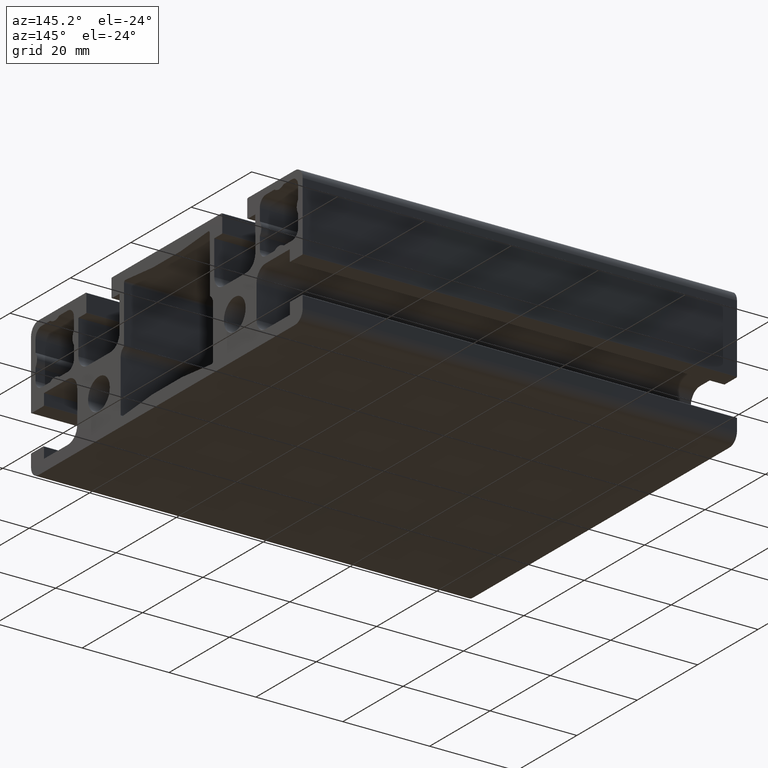
[diagram: clean part render]
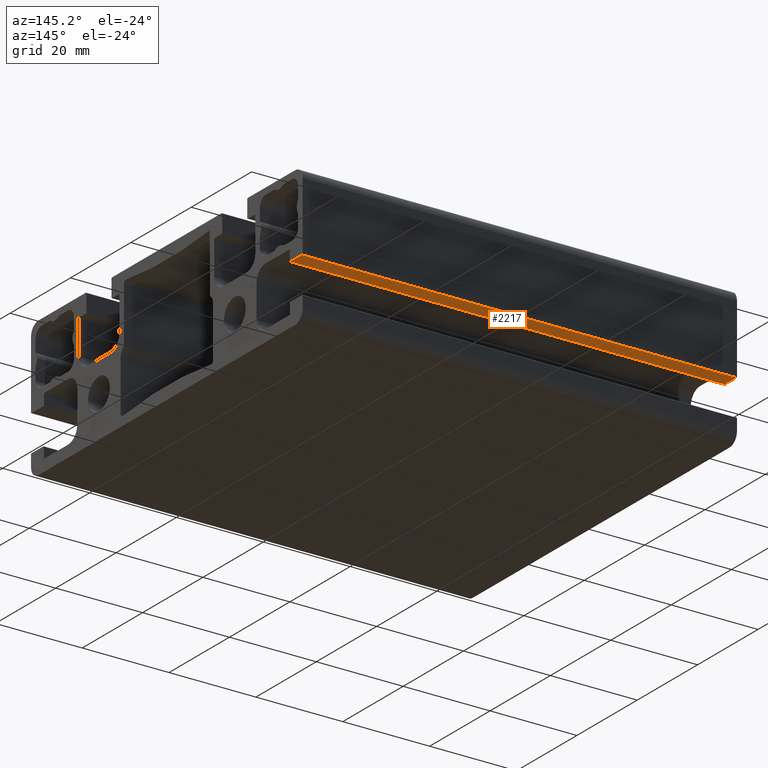
[diagram: same view with one face highlighted and labeled with its STEP entity id]
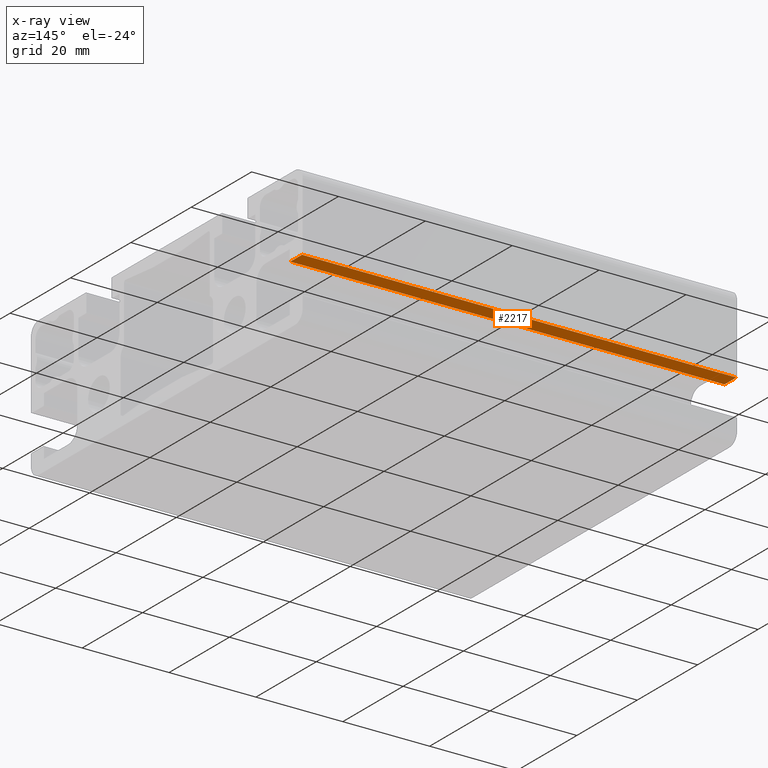
[diagram: x-ray of the same camera — body ghosted, the highlighted face saturated]
A machine part, auxiliary view. The second image highlights one B-rep face of the part: STEP entity #2217.
The next image is the same camera in x-ray: the body ghosted, the highlighted face saturated — about 0% of this face is hidden behind the body in this view.
In plain terms, the highlighted planar face has unit normal (0, -0, -1).
Its self-contained STEP definition (entity closure, byte-faithful):
#66=PLANE('',#2446);
#167=FACE_OUTER_BOUND('',#284,.T.);
#284=EDGE_LOOP('',(#1861,#1862,#1863,#1864));
#532=LINE('',#3505,#754);
#604=LINE('',#3704,#826);
#605=LINE('',#3707,#827);
#606=LINE('',#3708,#828);
#754=VECTOR('',#2826,10.);
#826=VECTOR('',#3028,10.);
#827=VECTOR('',#3031,10.);
#828=VECTOR('',#3032,10.);
#999=VERTEX_POINT('',#3502);
#1000=VERTEX_POINT('',#3504);
#1062=VERTEX_POINT('',#3702);
#1063=VERTEX_POINT('',#3706);
#1265=EDGE_CURVE('',#999,#1000,#532,.T.);
#1365=EDGE_CURVE('',#1062,#999,#604,.T.);
#1366=EDGE_CURVE('',#1063,#1062,#605,.T.);
#1367=EDGE_CURVE('',#1063,#1000,#606,.T.);
#1861=ORIENTED_EDGE('',*,*,#1365,.F.);
#1862=ORIENTED_EDGE('',*,*,#1366,.F.);
#1863=ORIENTED_EDGE('',*,*,#1367,.T.);
#1864=ORIENTED_EDGE('',*,*,#1265,.F.);
#2217=ADVANCED_FACE('',(#167),#66,.T.);
#2446=AXIS2_PLACEMENT_3D('',#3705,#3029,#3030);
#2826=DIRECTION('',(0.,-1.,2.84672570416706E-16));
#3028=DIRECTION('',(-1.,0.,0.));
#3029=DIRECTION('center_axis',(0.,-2.84672570416706E-16,-1.));
#3030=DIRECTION('ref_axis',(0.,1.,-2.84672570416706E-16));
#3031=DIRECTION('',(0.,1.,-2.84672570416706E-16));
#3032=DIRECTION('',(-1.,0.,0.));
#3502=CARTESIAN_POINT('',(-50.,44.8,-2.35));
#3504=CARTESIAN_POINT('',(-50.,40.9,-2.35));
#3505=CARTESIAN_POINT('',(-50.,44.8,-2.35));
#3702=CARTESIAN_POINT('',(50.,44.8,-2.35));
#3704=CARTESIAN_POINT('',(0.,44.8,-2.35));
#3705=CARTESIAN_POINT('Origin',(0.,40.9,-2.35));
#3706=CARTESIAN_POINT('',(50.,40.9,-2.35));
#3707=CARTESIAN_POINT('',(50.,44.8,-2.35));
#3708=CARTESIAN_POINT('',(0.,40.9,-2.35));